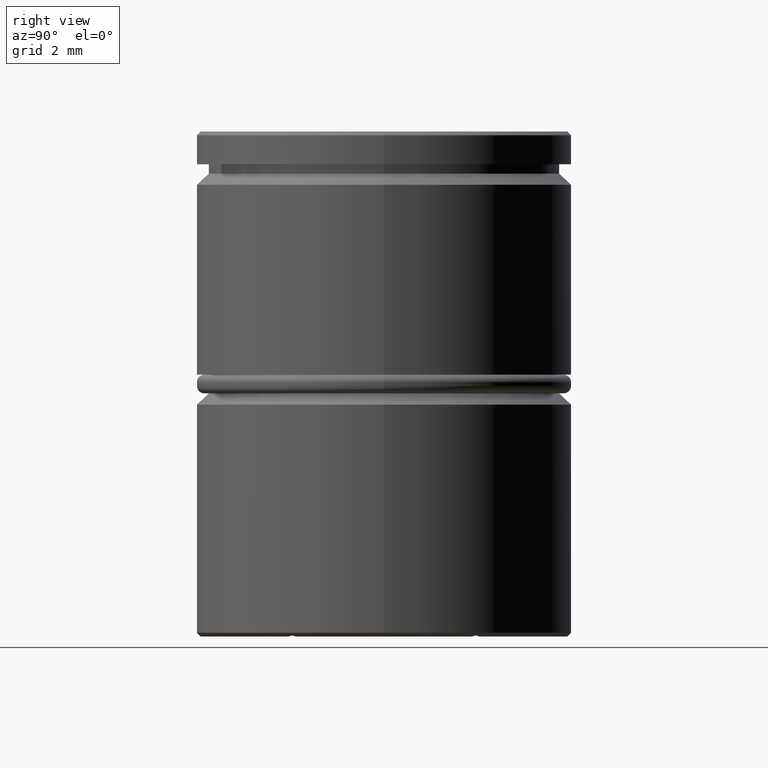
[diagram: clean part render]
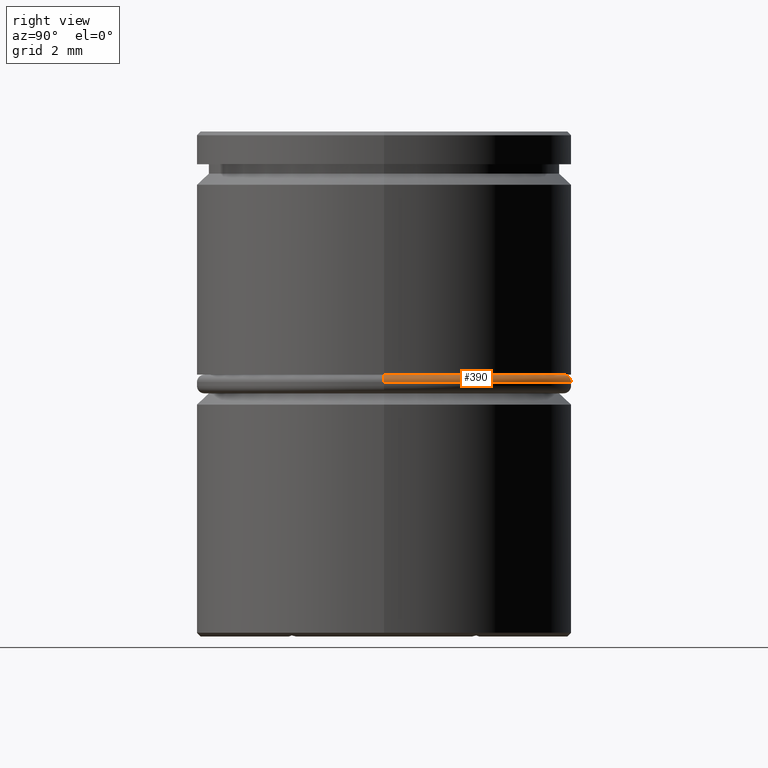
[diagram: same view with one face highlighted and labeled with its STEP entity id]
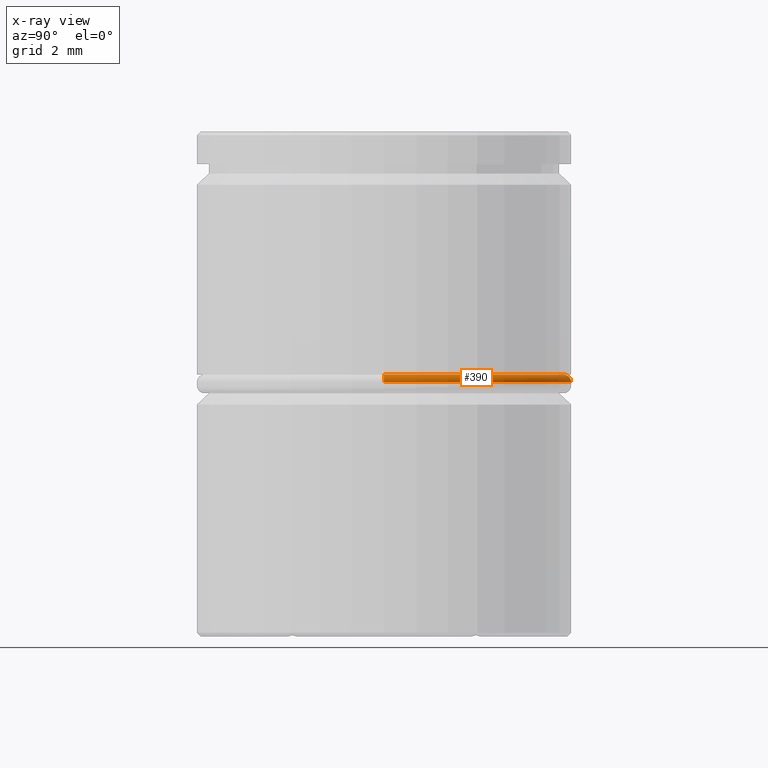
[diagram: x-ray of the same camera — body ghosted, the highlighted face saturated]
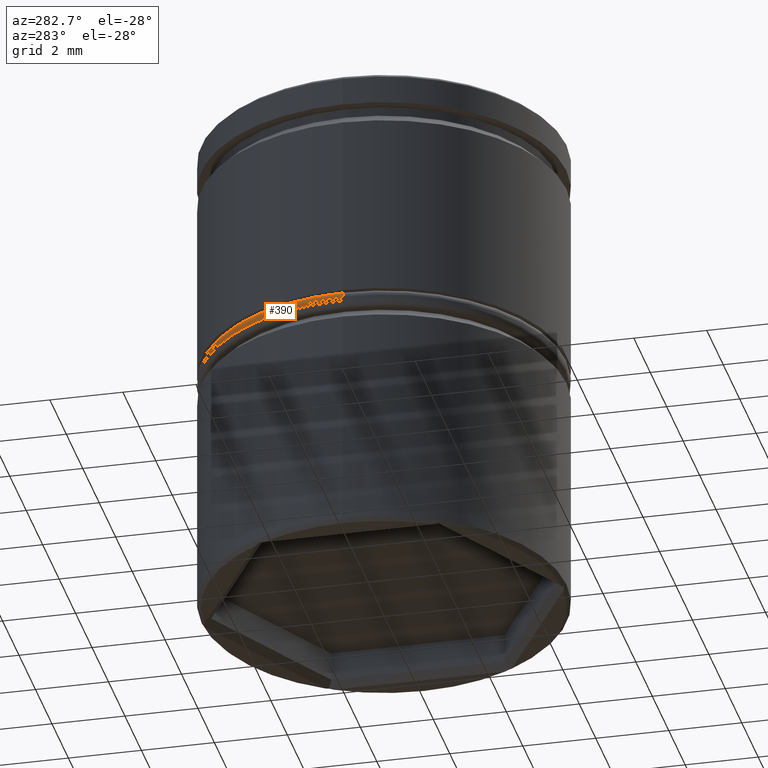
[diagram: same view with one face highlighted and labeled with its STEP entity id]
A machine part, right view. The second image highlights one B-rep face of the part: STEP entity #390.
The next image is the same camera in x-ray: the body ghosted, the highlighted face saturated — about 0% of this face is hidden behind the body in this view.
A second angle (auxiliary view) of the same face is appended — the face is thin or edge-on in the first view.
In plain terms, the highlighted toroidal blend (fillet) surface has major radius 4.8 mm and minor (blend) radius 0.2 mm.
Its self-contained STEP definition (entity closure, byte-faithful):
#10 = CARTESIAN_POINT ( 'NONE',  ( 0.000000000000000000, 0.000000000000000000, -6.499999999999999112 ) ) ;
#12 = EDGE_CURVE ( 'NONE', #253, #717, #1352, .T. ) ;
#111 = FACE_OUTER_BOUND ( 'NONE', #416, .T. ) ;
#193 = DIRECTION ( 'NONE',  ( -1.224646799147353207E-16, 1.000000000000000000, 0.000000000000000000 ) ) ;
#234 = EDGE_CURVE ( 'NONE', #1065, #717, #749, .T. ) ;
#253 = VERTEX_POINT ( 'NONE', #946 ) ;
#284 = CARTESIAN_POINT ( 'NONE',  ( 5.000000000000000000, 0.000000000000000000, -6.699999999999997513 ) ) ;
#312 = EDGE_CURVE ( 'NONE', #753, #253, #1353, .T. ) ;
#314 = DIRECTION ( 'NONE',  ( 0.000000000000000000, 0.000000000000000000, -1.000000000000000000 ) ) ;
#354 = ORIENTED_EDGE ( 'NONE', *, *, #376, .F. ) ;
#357 = TOROIDAL_SURFACE ( 'NONE', #873, 4.800000000000000711, 0.2000000000000000111 ) ;
#376 = EDGE_CURVE ( 'NONE', #1065, #753, #424, .T. ) ;
#389 = DIRECTION ( 'NONE',  ( 0.000000000000000000, 0.000000000000000000, -1.000000000000000000 ) ) ;
#390 = ADVANCED_FACE ( 'NONE', ( #111 ), #357, .T. ) ;
#393 = CARTESIAN_POINT ( 'NONE',  ( -4.800000000000000711, 0.000000000000000000, -6.699999999999997513 ) ) ;
#398 = CARTESIAN_POINT ( 'NONE',  ( 4.800000000000000711, 5.878304635907295197E-16, -6.699999999999997513 ) ) ;
#416 = EDGE_LOOP ( 'NONE', ( #354, #1064, #632, #1059 ) ) ;
#417 = DIRECTION ( 'NONE',  ( 0.000000000000000000, 0.000000000000000000, -1.000000000000000000 ) ) ;
#424 = CIRCLE ( 'NONE', #1229, 4.800000000000000711 ) ;
#576 = AXIS2_PLACEMENT_3D ( 'NONE', #393, #700, #389 ) ;
#609 = CARTESIAN_POINT ( 'NONE',  ( -4.800000000000000711, 0.000000000000000000, -6.499999999999999112 ) ) ;
#632 = ORIENTED_EDGE ( 'NONE', *, *, #12, .F. ) ;
#635 = AXIS2_PLACEMENT_3D ( 'NONE', #1054, #417, #1378 ) ;
#700 = DIRECTION ( 'NONE',  ( -0.000000000000000000, -1.000000000000000000, -0.000000000000000000 ) ) ;
#717 = VERTEX_POINT ( 'NONE', #284 ) ;
#749 = CIRCLE ( 'NONE', #935, 0.1999999999999996503 ) ;
#753 = VERTEX_POINT ( 'NONE', #609 ) ;
#873 = AXIS2_PLACEMENT_3D ( 'NONE', #1279, #314, #1169 ) ;
#935 = AXIS2_PLACEMENT_3D ( 'NONE', #398, #193, #1238 ) ;
#946 = CARTESIAN_POINT ( 'NONE',  ( -5.000000000000000000, 6.123233995736766282E-16, -6.699999999999997513 ) ) ;
#1054 = CARTESIAN_POINT ( 'NONE',  ( 0.000000000000000000, 0.000000000000000000, -6.699999999999997513 ) ) ;
#1059 = ORIENTED_EDGE ( 'NONE', *, *, #312, .F. ) ;
#1064 = ORIENTED_EDGE ( 'NONE', *, *, #234, .T. ) ;
#1065 = VERTEX_POINT ( 'NONE', #1252 ) ;
#1162 = DIRECTION ( 'NONE',  ( -1.000000000000000000, 0.000000000000000000, 0.000000000000000000 ) ) ;
#1169 = DIRECTION ( 'NONE',  ( -1.000000000000000000, 0.000000000000000000, 0.000000000000000000 ) ) ;
#1182 = DIRECTION ( 'NONE',  ( -0.000000000000000000, -0.000000000000000000, 1.000000000000000000 ) ) ;
#1229 = AXIS2_PLACEMENT_3D ( 'NONE', #10, #1182, #1162 ) ;
#1238 = DIRECTION ( 'NONE',  ( -1.000000000000000000, -1.224646799147353454E-16, 0.000000000000000000 ) ) ;
#1252 = CARTESIAN_POINT ( 'NONE',  ( 4.800000000000000711, 6.000769315822031726E-16, -6.499999999999999112 ) ) ;
#1279 = CARTESIAN_POINT ( 'NONE',  ( 0.000000000000000000, 0.000000000000000000, -6.699999999999997513 ) ) ;
#1352 = CIRCLE ( 'NONE', #635, 5.000000000000000000 ) ;
#1353 = CIRCLE ( 'NONE', #576, 0.1999999999999996503 ) ;
#1378 = DIRECTION ( 'NONE',  ( -1.000000000000000000, 0.000000000000000000, 0.000000000000000000 ) ) ;